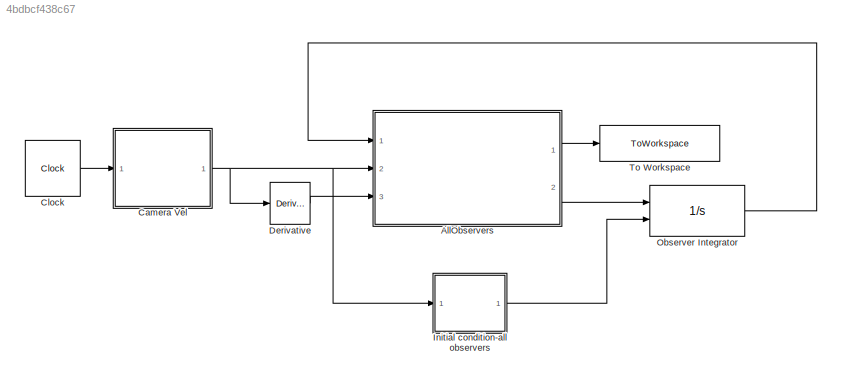
MODEL slx_4bdbcf438c67
KIND model
CONFIG AbsTol = auto
CONFIG EnableMultiTasking = off
CONFIG FixedStep = timeStep
CONFIG MaxStep = auto
CONFIG MinStep = auto
CONFIG RelTol = 1e-3
CONFIG SampleTimeConstraint = Unconstrained
CONFIG Solver = FixedStepAuto
CONFIG SolverName = FixedStepAuto
CONFIG StartTime = 0.0
CONFIG StopTime = timeStop
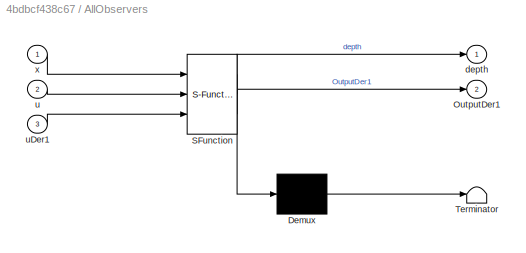
BLOCK [SubSystem] AllObservers
  ErrorFcn = Stateflow.Translate.translate
  PermitHierarchicalResolution = ExplicitOnly
  Ports = [3, 2]
  RequestExecContextInheritance = off
  SFBlockType = MATLAB Function
  TreatAsAtomicUnit = on
BLOCK [Demux] AllObservers/ Demux 
  Outputs = 1
  Ports = [1, 1]
BLOCK [S-Function] AllObservers/ SFunction 
  EnableBusSupport = on
  FunctionName = sf_sfun
  Parameters = M9,b20,focalLen,k123,lamda5,rou20
  PortCounts = [3 3]
  Ports = [3, 3]
  SFcnIsStateOwnerBlock = off
  SFunctionDeploymentMode = off
  Tag = Stateflow S-Function 2
BLOCK [Terminator] AllObservers/ Terminator 
BLOCK [Outport] AllObservers/OutputDer1
  IconDisplay = Port number
  Port = 2
  VectorParamsAs1DForOutWhenUnconnected = off
BLOCK [Outport] AllObservers/depth
  IconDisplay = Port number
  VectorParamsAs1DForOutWhenUnconnected = off
BLOCK [Inport] AllObservers/u
  IconDisplay = Port number
  Port = 2
BLOCK [Inport] AllObservers/uDer1
  IconDisplay = Port number
  Port = 3
BLOCK [Inport] AllObservers/x
  IconDisplay = Port number
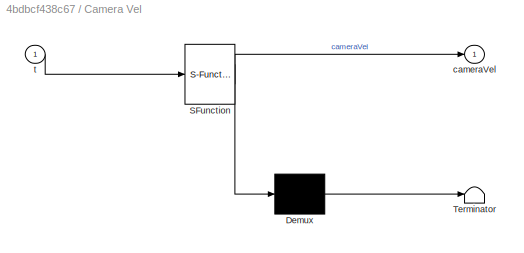
BLOCK [SubSystem] Camera Vel
  ErrorFcn = Stateflow.Translate.translate
  PermitHierarchicalResolution = ExplicitOnly
  Ports = [1, 1]
  RequestExecContextInheritance = off
  SFBlockType = MATLAB Function
  TreatAsAtomicUnit = on
BLOCK [Demux] Camera Vel/ Demux 
  Outputs = 1
  Ports = [1, 1]
BLOCK [S-Function] Camera Vel/ SFunction 
  EnableBusSupport = on
  FunctionName = sf_sfun
  Parameters = modelSelection
  PortCounts = [1 2]
  Ports = [1, 2]
  SFcnIsStateOwnerBlock = off
  SFunctionDeploymentMode = off
  Tag = Stateflow S-Function 1
BLOCK [Terminator] Camera Vel/ Terminator 
BLOCK [Outport] Camera Vel/cameraVel
  IconDisplay = Port number
  VectorParamsAs1DForOutWhenUnconnected = off
BLOCK [Inport] Camera Vel/t
  IconDisplay = Port number
BLOCK [Clock] Clock
  Decimation = 5
  DisplayTime = on
BLOCK [Derivative] Derivative
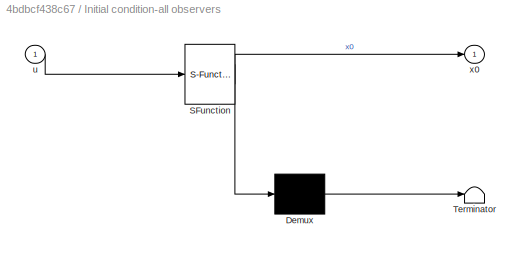
BLOCK [SubSystem] Initial condition-all observers
  ErrorFcn = Stateflow.Translate.translate
  PermitHierarchicalResolution = ExplicitOnly
  Ports = [1, 1]
  RequestExecContextInheritance = off
  SFBlockType = MATLAB Function
  TreatAsAtomicUnit = on
BLOCK [Demux] Initial condition-all observers/ Demux 
  Outputs = 1
  Ports = [1, 1]
BLOCK [S-Function] Initial condition-all observers/ SFunction 
  EnableBusSupport = on
  FunctionName = sf_sfun
  Parameters = M9,b20,focalLen,k123,lamda5,modelSelection,rou20
  PortCounts = [1 2]
  Ports = [1, 2]
  SFcnIsStateOwnerBlock = off
  SFunctionDeploymentMode = off
  Tag = Stateflow S-Function 7
BLOCK [Terminator] Initial condition-all observers/ Terminator 
BLOCK [Inport] Initial condition-all observers/u
  IconDisplay = Port number
BLOCK [Outport] Initial condition-all observers/x0
  IconDisplay = Port number
  VectorParamsAs1DForOutWhenUnconnected = off
BLOCK [Integrator] Observer Integrator
  InitialCondition = [10, 5, 2, 10, 5, 5, -2.2734]
  InitialConditionSource = external
  Ports = [2, 1]
BLOCK [ToWorkspace] To Workspace
  FixptAsFi = on
  MaxDataPoints = inf
  Ports = [1]
  SampleTime = -1
  SaveFormat = Structure With Time
  VariableName = allDepths
LINE AllObservers:1 -> To Workspace:1
LINE AllObservers:2 -> Observer Integrator:1
NET Camera Vel:1 -> AllObservers:2, Derivative:1, Initial condition-all observers:1
LINE Clock:1 -> Camera Vel:1
LINE Derivative:1 -> AllObservers:3
LINE Initial condition-all observers:1 -> Observer Integrator:2
LINE Observer Integrator:1 -> AllObservers:1
note: NET lines group one-source signal fan-out (src -> all destinations, sorted); 1:1 wires keep LINE
CHART Camera Vel states=1 transitions=1
  STATE_LABEL 'eML_blk_kernel()'
  STATE_LABEL 'SCRIPT:\nfunction cameraVel = Model(t,modelSelection)\n%% 设置相机速度\ncameraVel = zeros(1,6);\n\n% 选择对应的相机速度\nif modelSelection == 1\n    % 该速度用于验证全局收敛性\n    cameraVel(1) = 0.1;\n    cameraVel(2) = 0.2;\n    cameraVel(3) = -0.8;\n    cameraVel(4) = sin(pi*t);\n    cameraVel(5) = pi/15;\n    cameraVel(6) = pi/8;      \nend'
CHART AllObservers states=1 transitions=1
  STATE_LABEL 'eML_blk_kernel()'
  STATE_LABEL 'SCRIPT:\nfunction [depth, OutputDer1] = Observer(x, u, uDer1, focalLen, lamda5, M9, k123, rou20, b20)\n%% 模型初始化\n% 初始化输出\ndepth = zeros(1, 5);\nOutputDer1 = zeros(1,7);\n\n% 系统动力学\nOutputDer1(1:3) = [-focalLen*x(3), 0, x(1)*x(3), x(1)*x(2)/focalLen, -(focalLen+x(1)^2/focalLen), x(2);\n          0, -focalLen*x(3), x(2)*x(3), (focalLen+x(2)^2/focalLen), -x(1)*x(2)/focalLen, -x(1);\n          0, 0, x(3)^2, x(2...<+3608ch>'
CHART Initial condition-all observers states=1 transitions=1
  STATE_LABEL 'eML_blk_kernel()'
  STATE_LABEL 'SCRIPT:\nfunction x0 = initialValue(u, focalLen, modelSelection, lamda5, M9, k123, rou20, b20)\n%% 选择不同模型\nx0 = zeros(1,7);\n    \nif modelSelection == 1\n    % 设置系统动力学真实的初值\n    x0(1) = 3;\n    x0(2) = 1.5;\n    x0(3) = 0.25;\n\n    % 设置观测器初始值的差值\n    errorValue = 3.96;\n\n    % 设置各观测器初始值\n    % A New solution to the Problem of Range Identification In  Perspective Vision Systems\n    % 2005 IEEE AC; Author:  Dim...<+1148ch>'
